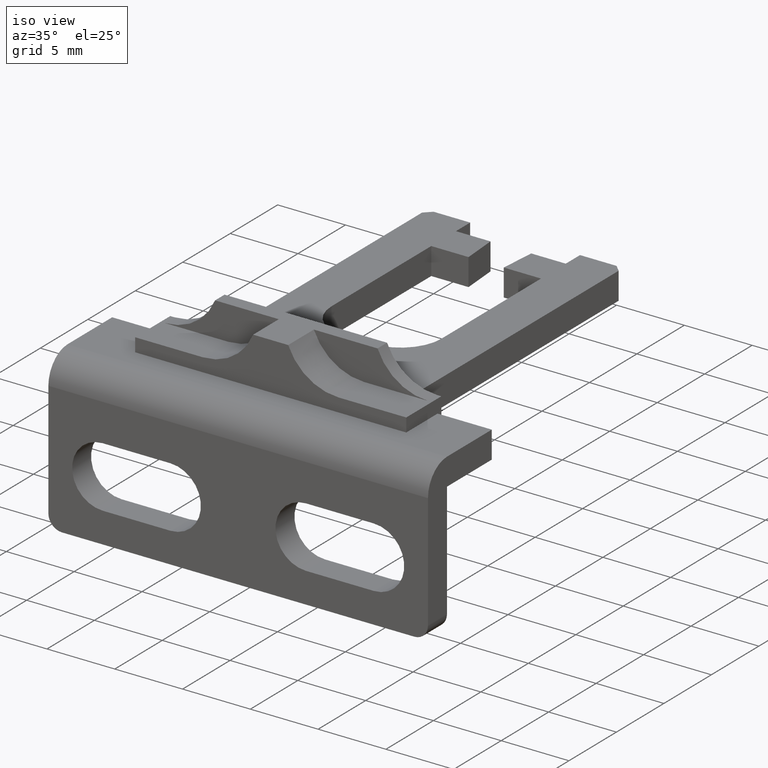
[diagram: clean part render]
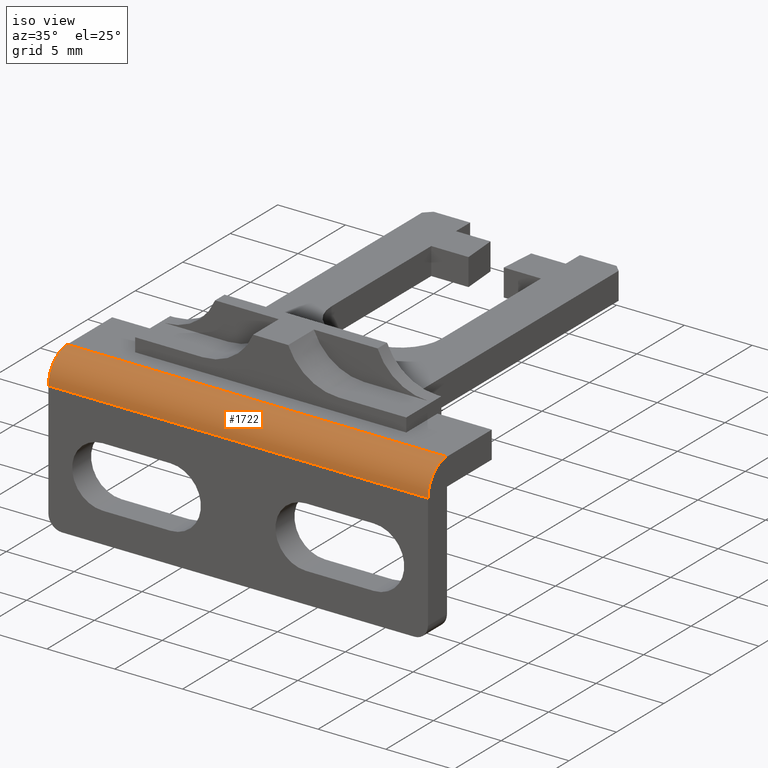
[diagram: same view with one face highlighted and labeled with its STEP entity id]
A machine part, iso view. The second image highlights one B-rep face of the part: STEP entity #1722.
In plain terms, the highlighted cylindrical surface (edge-blend (fillet) strip) has radius 2 mm, axis along (1, 0, 0).
Its self-contained STEP definition (entity closure, byte-faithful):
#1305=CARTESIAN_POINT('',(-14.0,-3.410104E-014,11.504601836602550));
#1306=VERTEX_POINT('',#1305);
#1313=CARTESIAN_POINT('',(14.0,-3.410104E-014,11.504601836602550));
#1314=VERTEX_POINT('',#1313);
#1315=CARTESIAN_POINT('',(-14.0,-3.410104E-014,11.504601836602550));
#1316=DIRECTION('',(1.0,0.0,0.0));
#1317=VECTOR('',#1316,28.0);
#1318=LINE('',#1315,#1317);
#1319=EDGE_CURVE('',#1306,#1314,#1318,.T.);
#1584=CARTESIAN_POINT('',(14.0,-2.000000000000034,9.504601836602543));
#1585=VERTEX_POINT('',#1584);
#1586=CARTESIAN_POINT('',(14.0,-3.422350E-014,9.504601836602550));
#1587=DIRECTION('',(1.0,5.551115E-017,-3.399078E-033));
#1588=DIRECTION('',(0.0,-6.123234E-017,-1.0));
#1589=AXIS2_PLACEMENT_3D('',#1586,#1587,#1588);
#1590=CIRCLE('',#1589,2.0);
#1591=EDGE_CURVE('',#1314,#1585,#1590,.T.);
#1647=CARTESIAN_POINT('',(-14.0,-2.000000000000034,9.504601836602550));
#1648=VERTEX_POINT('',#1647);
#1655=CARTESIAN_POINT('',(-14.0,-3.422350E-014,9.504601836602550));
#1656=DIRECTION('',(1.0,5.551115E-017,-3.399078E-033));
#1657=DIRECTION('',(5.551115E-017,-1.0,6.123234E-017));
#1658=AXIS2_PLACEMENT_3D('',#1655,#1656,#1657);
#1659=CIRCLE('',#1658,2.0);
#1660=EDGE_CURVE('',#1306,#1648,#1659,.T.);
#1706=CARTESIAN_POINT('',(-14.000000009999994,-3.414579E-014,9.504601836602550));
#1707=DIRECTION('',(1.0,5.551115E-017,0.0));
#1708=DIRECTION('',(-3.925231E-017,0.707106781186548,-0.707106781186547));
#1709=AXIS2_PLACEMENT_3D('',#1706,#1707,#1708);
#1710=CYLINDRICAL_SURFACE('',#1709,2.0);
#1711=CARTESIAN_POINT('',(-14.0,-2.000000000000034,9.504601836602543));
#1712=DIRECTION('',(1.0,0.0,0.0));
#1713=VECTOR('',#1712,28.0);
#1714=LINE('',#1711,#1713);
#1715=EDGE_CURVE('',#1648,#1585,#1714,.T.);
#1716=ORIENTED_EDGE('',*,*,#1715,.T.);
#1717=ORIENTED_EDGE('',*,*,#1591,.F.);
#1718=ORIENTED_EDGE('',*,*,#1319,.F.);
#1719=ORIENTED_EDGE('',*,*,#1660,.T.);
#1720=EDGE_LOOP('',(#1716,#1717,#1718,#1719));
#1721=FACE_OUTER_BOUND('',#1720,.T.);
#1722=ADVANCED_FACE('',(#1721),#1710,.T.);